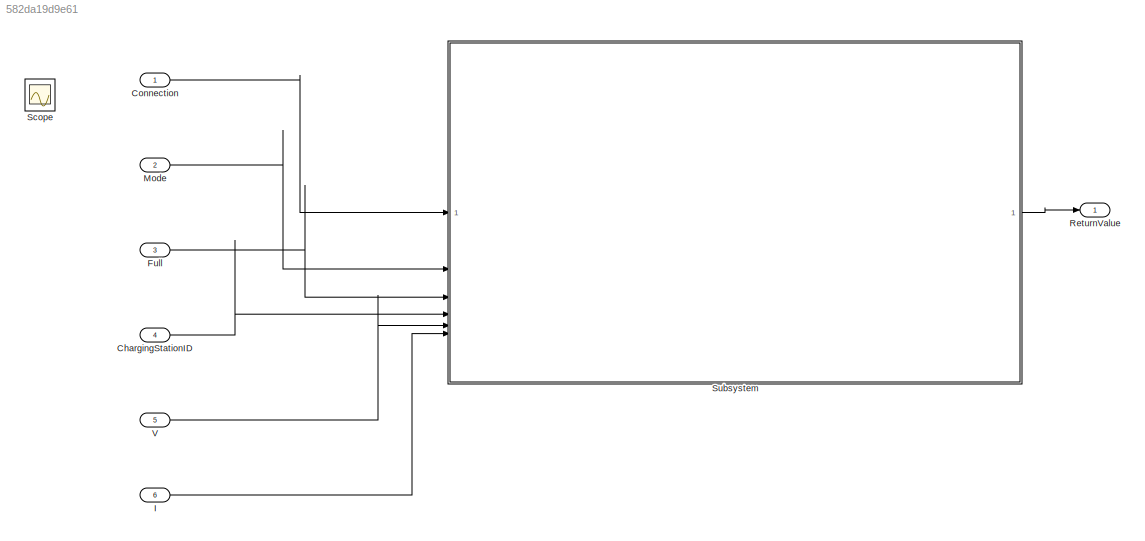
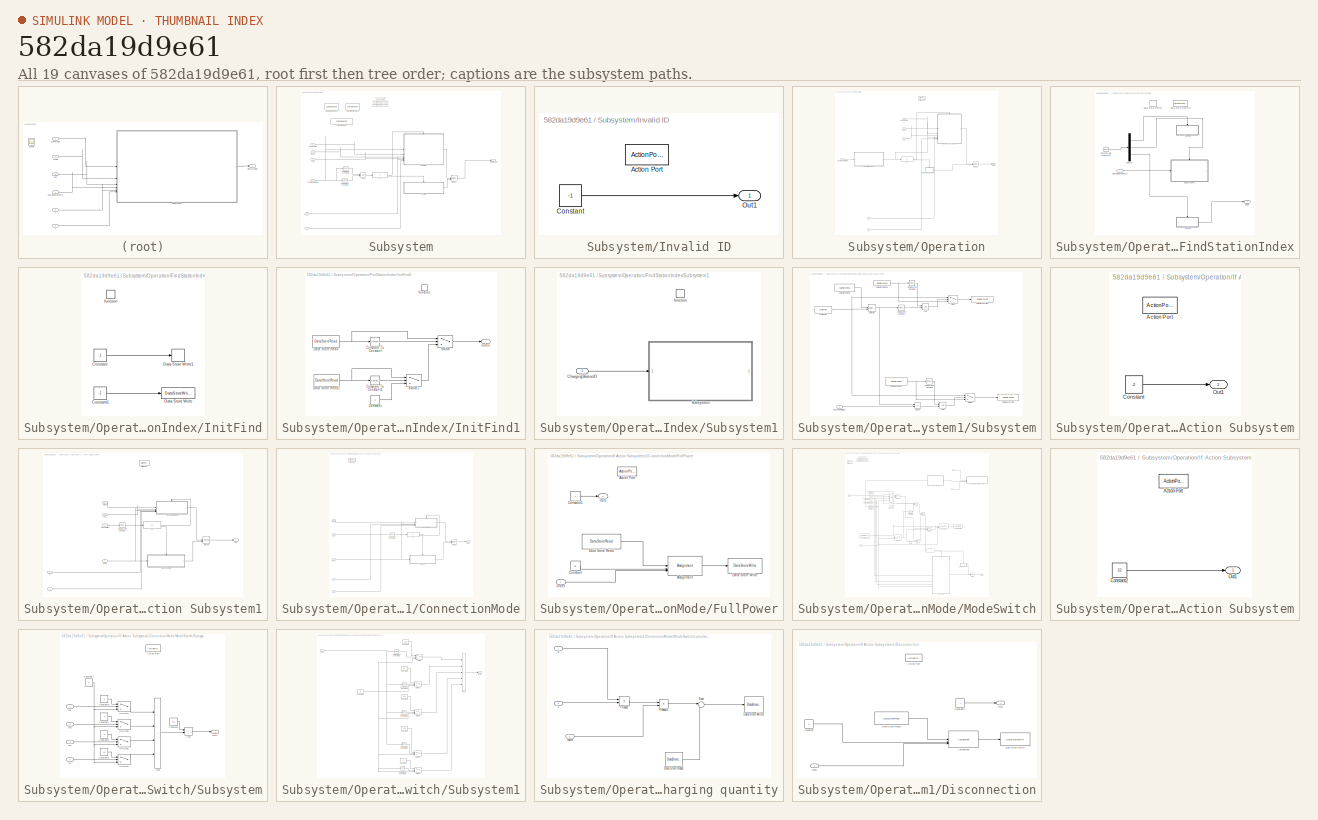
[diagram: thumbnail index - all 19 canvases of the model, root first then tree order]
MODEL slx_582da19d9e61
KIND model
CONFIG AbsTol = auto
CONFIG EnableMultiTasking = off
CONFIG FixedStep = 1
CONFIG MaxStep = auto
CONFIG MinStep = auto
CONFIG RelTol = 1e-3
CONFIG SampleTimeConstraint = Unconstrained
CONFIG SolverName = FixedStepDiscrete
CONFIG StartTime = 0.0
CONFIG StopTime = 50000000
BLOCK [Inport] ChargingStationID
  OutDataTypeStr = int16
  Port = 4
BLOCK [Inport] Connection
  OutDataTypeStr = int8
BLOCK [Inport] Full
  OutDataTypeStr = int8
  Port = 3
BLOCK [Inport] I
  OutDataTypeStr = int32
  Port = 6
BLOCK [Inport] Mode
  OutDataTypeStr = int8
  Port = 2
BLOCK [Outport] ReturnValue
BLOCK [Scope] Scope
  Floating = off
  IOType = viewer
  NumInputPorts = 1
  ScopeSpecificationString = Simulink.scopes.TimeScopeBlockCfg('CurrentConfiguration', extmgr.ConfigurationSet(extmgr.Configuration('Core','General UI',true),extmgr.Configuration('Core','Source UI',true),extmgr.Configuration('Sources','WiredSimulink',true),extmgr.Configuration('Visuals','Time Domain',true),extmgr.Configuration('Tools','Plot Navigation',true),extmgr.Configuration('Tools','Measurements',true,'Version','2022b'))...<+49ch>
BLOCK [SubSystem] Subsystem
BLOCK [Logic] Subsystem/AND
  AllPortsSameDT = off
  IconShape = distinctive
  OutDataTypeStr = boolean
BLOCK [Inport] Subsystem/ChargingStationID
  OutDataTypeStr = int16
  Port = 4
BLOCK [Reference] Subsystem/Compare To Constant1  REF=simulink/Logic and Bit
Operations/Compare
To Constant
  SourceBlock = simulink/Logic and Bit\nOperations/Compare\nTo Constant
  SourceType = Compare To Constant
BLOCK [Reference] Subsystem/Compare To Constant2  REF=simulink/Logic and Bit
Operations/Compare
To Constant
  SourceBlock = simulink/Logic and Bit\nOperations/Compare\nTo Constant
  SourceType = Compare To Constant
BLOCK [Inport] Subsystem/Connection
BLOCK [DataStoreMemory] Subsystem/Data Store Memory
  DataStoreName = Quantity
  OutDataTypeStr = int32
  ShowAdditionalParam = off
  WriteAfterWriteMsg = warning
BLOCK [DataStoreMemory] Subsystem/Data Store Memory1
  DataStoreName = ChargingPortStates
  Dimensions = Len
  OutDataTypeStr = int32
  ShowAdditionalParam = off
  WriteAfterWriteMsg = warning
BLOCK [DataStoreMemory] Subsystem/Data Store Memory2
  DataStoreName = StationID
  Dimensions = Len
  OutDataTypeStr = int32
  ShowAdditionalParam = off
  WriteAfterWriteMsg = warning
BLOCK [Inport] Subsystem/Full
  OutDataTypeStr = int8
  Port = 3
BLOCK [Inport] Subsystem/I
  Port = 6
BLOCK [If] Subsystem/If
  IfExpression = u1 ~= 0
BLOCK [SubSystem] Subsystem/Invalid ID
  TreatAsAtomicUnit = on
BLOCK [ActionPort] Subsystem/Invalid ID/Action Port
  ActionPortLabel = else
BLOCK [Constant] Subsystem/Invalid ID/Constant
  OutDataTypeStr = int32
  Value = -1
BLOCK [Outport] Subsystem/Invalid ID/Out1
BLOCK [Merge] Subsystem/Merge
BLOCK [Inport] Subsystem/Mode
  OutDataTypeStr = int8
  Port = 2
BLOCK [SubSystem] Subsystem/Operation
  TreatAsAtomicUnit = on
BLOCK [ActionPort] Subsystem/Operation/Action Port
  ActionPortLabel = if(u1 ~= 0)
BLOCK [Inport] Subsystem/Operation/ChargingStationID
  OutDataTypeStr = int16
BLOCK [Inport] Subsystem/Operation/Connection
  Port = 2
BLOCK [SubSystem] Subsystem/Operation/FindStationIndex
  TreatAsAtomicUnit = on
BLOCK [Inport] Subsystem/Operation/FindStationIndex/ChargingStationID
BLOCK [DataStoreMemory] Subsystem/Operation/FindStationIndex/Data Store Memory
  DataStoreName = FindId
  OutDataTypeStr = int16
  ShowAdditionalParam = off
  WriteAfterWriteMsg = warning
BLOCK [DataStoreMemory] Subsystem/Operation/FindStationIndex/Data Store Memory1
  DataStoreName = FindEmptyId
  OutDataTypeStr = int16
  ShowAdditionalParam = off
  WriteAfterWriteMsg = warning
BLOCK [Demux] Subsystem/Operation/FindStationIndex/Demux
  Outputs = 3
BLOCK [Reference] Subsystem/Operation/FindStationIndex/Function-Call Generator  REF=simulink/Ports &
Subsystems/Function-Call
Generator
  SourceBlock = simulink/Ports &\nSubsystems/Function-Call\nGenerator
  SourceType = Function-Call Generator
BLOCK [SubSystem] Subsystem/Operation/FindStationIndex/InitFind
BLOCK [Constant] Subsystem/Operation/FindStationIndex/InitFind/Constant
  OutDataTypeStr = int16
  Value = -1
BLOCK [Constant] Subsystem/Operation/FindStationIndex/InitFind/Constant1
  OutDataTypeStr = int16
  Value = -1
BLOCK [DataStoreWrite] Subsystem/Operation/FindStationIndex/InitFind/Data Store Write
  DataStoreName = FindEmptyId
  IndexOptions = Index vector (dialog)
  Indices = 1
  OutputSizes = 1
BLOCK [DataStoreWrite] Subsystem/Operation/FindStationIndex/InitFind/Data Store Write1
  DataStoreName = FindId
  IndexOptions = Index vector (dialog)
  Indices = 1
  OutputSizes = 1
BLOCK [TriggerPort] Subsystem/Operation/FindStationIndex/InitFind/function
  StatesWhenEnabling = held
  TriggerType = function-call
  VariantControl = Variant
BLOCK [SubSystem] Subsystem/Operation/FindStationIndex/InitFind1
BLOCK [Reference] Subsystem/Operation/FindStationIndex/InitFind1/Compare To Constant  REF=simulink/Logic and Bit
Operations/Compare
To Constant
  SourceBlock = simulink/Logic and Bit\nOperations/Compare\nTo Constant
  SourceType = Compare To Constant
BLOCK [Reference] Subsystem/Operation/FindStationIndex/InitFind1/Compare To Constant1  REF=simulink/Logic and Bit
Operations/Compare
To Constant
  SourceBlock = simulink/Logic and Bit\nOperations/Compare\nTo Constant
  SourceType = Compare To Constant
BLOCK [Constant] Subsystem/Operation/FindStationIndex/InitFind1/Constant
  OutDataTypeStr = int16
  Value = -1
BLOCK [DataStoreRead] Subsystem/Operation/FindStationIndex/InitFind1/Data Store Read
  DataStoreName = FindId
  IndexOptions = Index vector (dialog)
  Indices = 1
  OutputSizes = 1
BLOCK [DataStoreRead] Subsystem/Operation/FindStationIndex/InitFind1/Data Store Read1
  DataStoreName = FindEmptyId
  IndexOptions = Index vector (dialog)
  Indices = 1
  OutputSizes = 1
BLOCK [Switch] Subsystem/Operation/FindStationIndex/InitFind1/Switch
  Criteria = u2 ~= 0
  InputSameDT = off
  SaturateOnIntegerOverflow = off
BLOCK [Switch] Subsystem/Operation/FindStationIndex/InitFind1/Switch1
  Criteria = u2 ~= 0
  InputSameDT = off
  SaturateOnIntegerOverflow = off
BLOCK [TriggerPort] Subsystem/Operation/FindStationIndex/InitFind1/function
  StatesWhenEnabling = held
  TriggerType = function-call
  VariantControl = Variant
BLOCK [Outport] Subsystem/Operation/FindStationIndex/InitFind1/index
BLOCK [SubSystem] Subsystem/Operation/FindStationIndex/Subsystem1
BLOCK [Inport] Subsystem/Operation/FindStationIndex/Subsystem1/ChargingStationID
BLOCK [SubSystem] Subsystem/Operation/FindStationIndex/Subsystem1/Subsystem
BLOCK [Logic] Subsystem/Operation/FindStationIndex/Subsystem1/Subsystem/AND
  AllPortsSameDT = off
  IconShape = distinctive
  OutDataTypeStr = boolean
BLOCK [Logic] Subsystem/Operation/FindStationIndex/Subsystem1/Subsystem/AND1
  AllPortsSameDT = off
  IconShape = distinctive
  OutDataTypeStr = boolean
BLOCK [Inport] Subsystem/Operation/FindStationIndex/Subsystem1/Subsystem/ChargingStationID
BLOCK [Reference] Subsystem/Operation/FindStationIndex/Subsystem1/Subsystem/Compare To Constant  REF=simulink/Logic and Bit
Operations/Compare
To Constant
  SourceBlock = simulink/Logic and Bit\nOperations/Compare\nTo Constant
  SourceType = Compare To Constant
BLOCK [Reference] Subsystem/Operation/FindStationIndex/Subsystem1/Subsystem/Compare To Constant1  REF=simulink/Logic and Bit
Operations/Compare
To Constant
  SourceBlock = simulink/Logic and Bit\nOperations/Compare\nTo Constant
  SourceType = Compare To Constant
BLOCK [Reference] Subsystem/Operation/FindStationIndex/Subsystem1/Subsystem/Compare To Constant3  REF=simulink/Logic and Bit
Operations/Compare
To Constant
  SourceBlock = simulink/Logic and Bit\nOperations/Compare\nTo Constant
  SourceType = Compare To Constant
BLOCK [DataStoreRead] Subsystem/Operation/FindStationIndex/Subsystem1/Subsystem/Data Store Read
  DataStoreName = StationID
  IndexOptions = Index vector (dialog)
  Indices = 1
  OutputSizes = 1
BLOCK [DataStoreRead] Subsystem/Operation/FindStationIndex/Subsystem1/Subsystem/Data Store Read1
  DataStoreName = FindEmptyId
  IndexOptions = Index vector (dialog)
  Indices = 1
  OutputSizes = 1
BLOCK [DataStoreRead] Subsystem/Operation/FindStationIndex/Subsystem1/Subsystem/Data Store Read2
  DataStoreName = FindId
  IndexOptions = Index vector (dialog)
  Indices = 1
  OutputSizes = 1
BLOCK [DataStoreWrite] Subsystem/Operation/FindStationIndex/Subsystem1/Subsystem/Data Store Write1
  DataStoreName = FindId
  IndexOptions = Index vector (dialog)
  Indices = 1
  OutputSizes = 1
BLOCK [DataStoreWrite] Subsystem/Operation/FindStationIndex/Subsystem1/Subsystem/Data Store Write2
  DataStoreName = FindEmptyId
  IndexOptions = Index vector (dialog)
  Indices = 1
  OutputSizes = 1
BLOCK [RelationalOperator] Subsystem/Operation/FindStationIndex/Subsystem1/Subsystem/Equal
  InputSameDT = off
  Operator = ==
  OutDataTypeStr = boolean
  RndMeth = Simplest
BLOCK [ForIterator] Subsystem/Operation/FindStationIndex/Subsystem1/Subsystem/For Iterator
  IndexMode = Zero-based
  IterationLimit = Len
  IterationVariableDataType = int16
BLOCK [Selector] Subsystem/Operation/FindStationIndex/Subsystem1/Subsystem/Selector
  IndexMode = Zero-based
  IndexOptions = Index vector (port)
  Indices = [1 3]
  InputPortWidth = Len
  OutputSizes = 1
BLOCK [Switch] Subsystem/Operation/FindStationIndex/Subsystem1/Subsystem/Switch
  Criteria = u2 ~= 0
  InputSameDT = off
  SaturateOnIntegerOverflow = off
BLOCK [Switch] Subsystem/Operation/FindStationIndex/Subsystem1/Subsystem/Switch1
  Criteria = u2 ~= 0
  InputSameDT = off
  SaturateOnIntegerOverflow = off
BLOCK [TriggerPort] Subsystem/Operation/FindStationIndex/Subsystem1/function
  StatesWhenEnabling = held
  TriggerType = function-call
  VariantControl = Variant
BLOCK [Outport] Subsystem/Operation/FindStationIndex/index
BLOCK [Inport] Subsystem/Operation/Full
  Port = 4
BLOCK [Inport] Subsystem/Operation/I
  Port = 6
BLOCK [SubSystem] Subsystem/Operation/If Action Subsystem
  TreatAsAtomicUnit = on
BLOCK [ActionPort] Subsystem/Operation/If Action Subsystem/Action Port
  ActionPortLabel = else
BLOCK [Constant] Subsystem/Operation/If Action Subsystem/Constant
  OutDataTypeStr = int32
  Value = -2
BLOCK [Outport] Subsystem/Operation/If Action Subsystem/Out1
BLOCK [SubSystem] Subsystem/Operation/If Action Subsystem1
  TreatAsAtomicUnit = on
BLOCK [ActionPort] Subsystem/Operation/If Action Subsystem1/Action Port
  ActionPortLabel = if(u1 >= 0)
BLOCK [Reference] Subsystem/Operation/If Action Subsystem1/Compare To Constant  REF=simulink/Logic and Bit
Operations/Compare
To Constant
  SourceBlock = simulink/Logic and Bit\nOperations/Compare\nTo Constant
  SourceType = Compare To Constant
BLOCK [Inport] Subsystem/Operation/If Action Subsystem1/Connection
BLOCK [SubSystem] Subsystem/Operation/If Action Subsystem1/ConnectionMode
  TreatAsAtomicUnit = on
BLOCK [ActionPort] Subsystem/Operation/If Action Subsystem1/ConnectionMode/Action Port
  ActionPortLabel = if(u1 ~= 0)
BLOCK [Reference] Subsystem/Operation/If Action Subsystem1/ConnectionMode/Compare To Constant  REF=simulink/Logic and Bit
Operations/Compare
To Constant
  SourceBlock = simulink/Logic and Bit\nOperations/Compare\nTo Constant
  SourceType = Compare To Constant
BLOCK [Inport] Subsystem/Operation/If Action Subsystem1/ConnectionMode/Full
  Port = 2
BLOCK [SubSystem] Subsystem/Operation/If Action Subsystem1/ConnectionMode/FullPower
  TreatAsAtomicUnit = on
BLOCK [ActionPort] Subsystem/Operation/If Action Subsystem1/ConnectionMode/FullPower/Action Port
  ActionPortLabel = if(u1 ~= 0)
BLOCK [Assignment] Subsystem/Operation/If Action Subsystem1/ConnectionMode/FullPower/Assignment
  DiagnosticForDimensions = Warning
  IndexMode = Zero-based
  IndexOptions = Index vector (port)
  Indices = 1
  OutputSizes = 1
BLOCK [Constant] Subsystem/Operation/If Action Subsystem1/ConnectionMode/FullPower/Constant
  OutDataTypeStr = int32
  Value = 32
BLOCK [Constant] Subsystem/Operation/If Action Subsystem1/ConnectionMode/FullPower/Constant1
  OutDataTypeStr = int32
BLOCK [DataStoreRead] Subsystem/Operation/If Action Subsystem1/ConnectionMode/FullPower/Data Store Read
  DataStoreName = ChargingPortStates
  IndexOptions = Index vector (dialog)
  Indices = 1
  OutputSizes = 1
BLOCK [DataStoreWrite] Subsystem/Operation/If Action Subsystem1/ConnectionMode/FullPower/Data Store Write
  DataStoreName = ChargingPortStates
  IndexOptions = Index vector (dialog)
  Indices = 1
  OutputSizes = 1
BLOCK [Inport] Subsystem/Operation/If Action Subsystem1/ConnectionMode/FullPower/Index
BLOCK [Outport] Subsystem/Operation/If Action Subsystem1/ConnectionMode/FullPower/Out1
BLOCK [Inport] Subsystem/Operation/If Action Subsystem1/ConnectionMode/I
  Port = 5
BLOCK [If] Subsystem/Operation/If Action Subsystem1/ConnectionMode/If
  IfExpression = u1 ~= 0
BLOCK [Inport] Subsystem/Operation/If Action Subsystem1/ConnectionMode/Index
  OutDataTypeStr = int16
  Port = 3
BLOCK [Merge] Subsystem/Operation/If Action Subsystem1/ConnectionMode/Merge
BLOCK [Inport] Subsystem/Operation/If Action Subsystem1/ConnectionMode/Mode
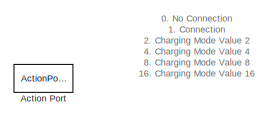
[diagram: Subsystem/Operation/If Action Subsystem1/ConnectionMode/ModeSwitch - part 1/3, top left region]
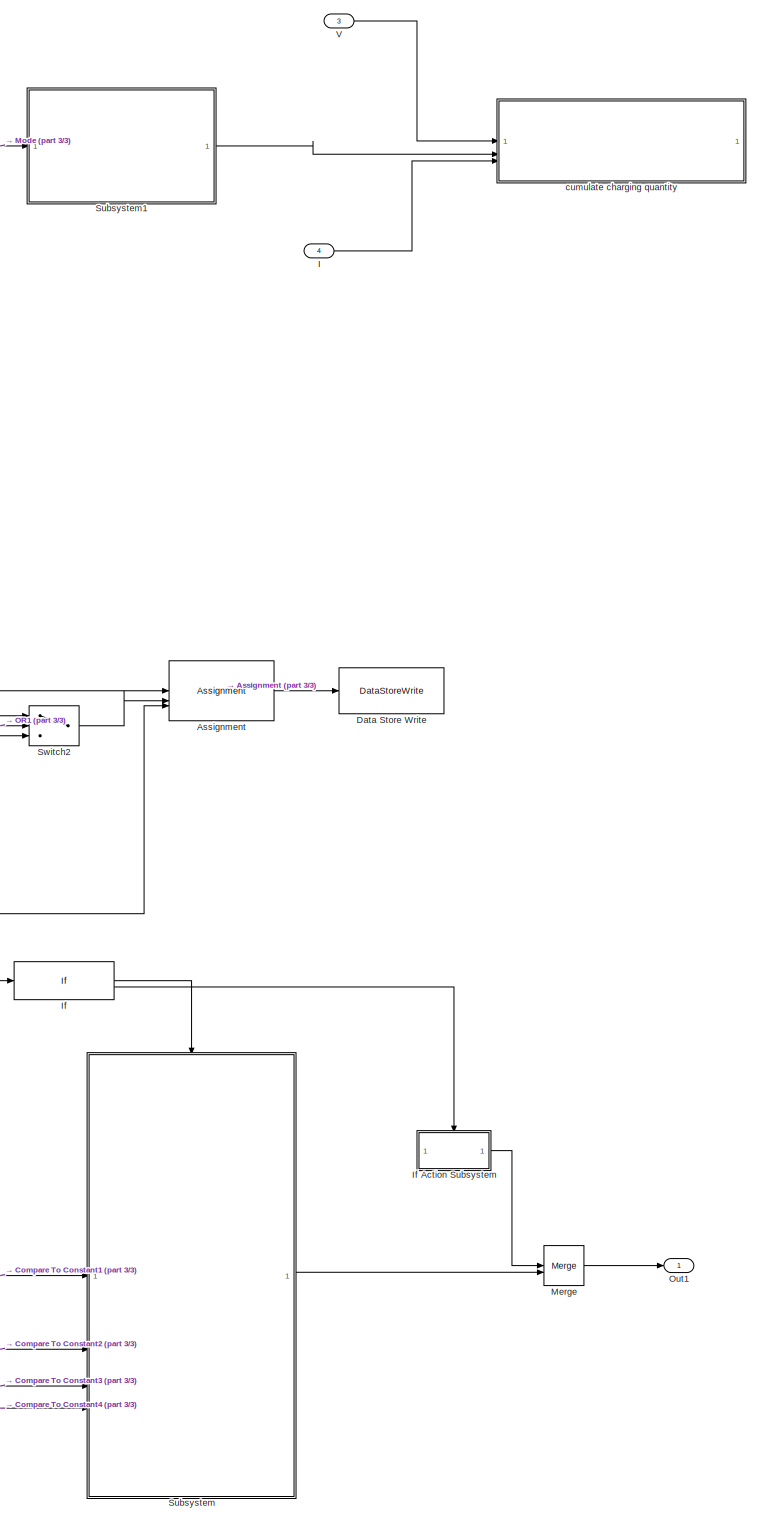
[diagram: Subsystem/Operation/If Action Subsystem1/ConnectionMode/ModeSwitch - part 2/3, right side, full height]
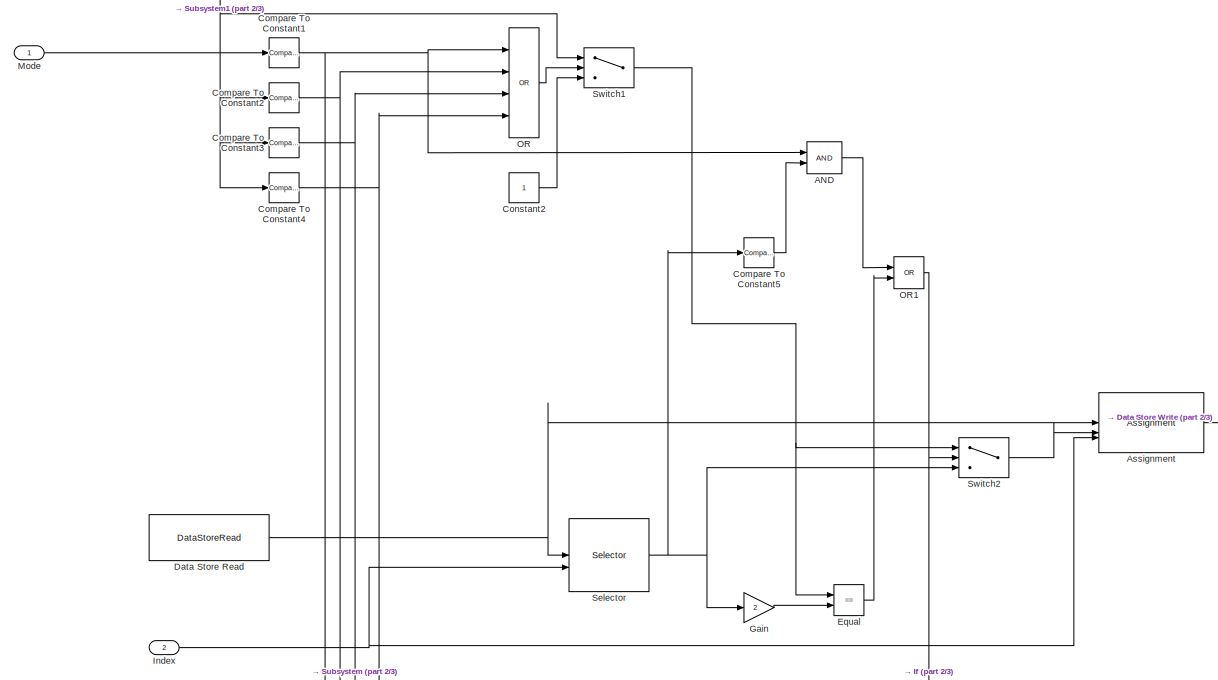
[diagram: Subsystem/Operation/If Action Subsystem1/ConnectionMode/ModeSwitch - part 3/3, central region]
BLOCK [SubSystem] Subsystem/Operation/If Action Subsystem1/ConnectionMode/ModeSwitch
  TreatAsAtomicUnit = on
BLOCK [Logic] Subsystem/Operation/If Action Subsystem1/ConnectionMode/ModeSwitch/AND
  AllPortsSameDT = off
  IconShape = distinctive
  OutDataTypeStr = boolean
BLOCK [ActionPort] Subsystem/Operation/If Action Subsystem1/ConnectionMode/ModeSwitch/Action Port
  ActionPortLabel = else
BLOCK [Assignment] Subsystem/Operation/If Action Subsystem1/ConnectionMode/ModeSwitch/Assignment
  DiagnosticForDimensions = Warning
  IndexMode = Zero-based
  IndexOptions = Index vector (port)
  Indices = 1
  OutputSizes = 1
BLOCK [Reference] Subsystem/Operation/If Action Subsystem1/ConnectionMode/ModeSwitch/Compare To Constant1  REF=simulink/Logic and Bit
Operations/Compare
To Constant
  SourceBlock = simulink/Logic and Bit\nOperations/Compare\nTo Constant
  SourceType = Compare To Constant
BLOCK [Reference] Subsystem/Operation/If Action Subsystem1/ConnectionMode/ModeSwitch/Compare To Constant2  REF=simulink/Logic and Bit
Operations/Compare
To Constant
  SourceBlock = simulink/Logic and Bit\nOperations/Compare\nTo Constant
  SourceType = Compare To Constant
BLOCK [Reference] Subsystem/Operation/If Action Subsystem1/ConnectionMode/ModeSwitch/Compare To Constant3  REF=simulink/Logic and Bit
Operations/Compare
To Constant
  SourceBlock = simulink/Logic and Bit\nOperations/Compare\nTo Constant
  SourceType = Compare To Constant
BLOCK [Reference] Subsystem/Operation/If Action Subsystem1/ConnectionMode/ModeSwitch/Compare To Constant4  REF=simulink/Logic and Bit
Operations/Compare
To Constant
  SourceBlock = simulink/Logic and Bit\nOperations/Compare\nTo Constant
  SourceType = Compare To Constant
BLOCK [Reference] Subsystem/Operation/If Action Subsystem1/ConnectionMode/ModeSwitch/Compare To Constant5  REF=simulink/Logic and Bit
Operations/Compare
To Constant
  SourceBlock = simulink/Logic and Bit\nOperations/Compare\nTo Constant
  SourceType = Compare To Constant
BLOCK [Constant] Subsystem/Operation/If Action Subsystem1/ConnectionMode/ModeSwitch/Constant2
  OutDataTypeStr = int32
BLOCK [DataStoreRead] Subsystem/Operation/If Action Subsystem1/ConnectionMode/ModeSwitch/Data Store Read
  DataStoreName = ChargingPortStates
  IndexOptions = Index vector (dialog)
  Indices = 1
  OutputSizes = 1
BLOCK [DataStoreWrite] Subsystem/Operation/If Action Subsystem1/ConnectionMode/ModeSwitch/Data Store Write
  DataStoreName = ChargingPortStates
  IndexOptions = Index vector (dialog)
  Indices = 1
  OutputSizes = 1
BLOCK [RelationalOperator] Subsystem/Operation/If Action Subsystem1/ConnectionMode/ModeSwitch/Equal
  InputSameDT = off
  Operator = ==
  OutDataTypeStr = boolean
  RndMeth = Simplest
BLOCK [Gain] Subsystem/Operation/If Action Subsystem1/ConnectionMode/ModeSwitch/Gain
  Gain = 2
  OutDataTypeStr = int32
BLOCK [Inport] Subsystem/Operation/If Action Subsystem1/ConnectionMode/ModeSwitch/I
  Port = 4
BLOCK [If] Subsystem/Operation/If Action Subsystem1/ConnectionMode/ModeSwitch/If
  IfExpression = u1 ~= 0
BLOCK [SubSystem] Subsystem/Operation/If Action Subsystem1/ConnectionMode/ModeSwitch/If Action Subsystem
  TreatAsAtomicUnit = on
BLOCK [ActionPort] Subsystem/Operation/If Action Subsystem1/ConnectionMode/ModeSwitch/If Action Subsystem/Action Port
  ActionPortLabel = else
BLOCK [Constant] Subsystem/Operation/If Action Subsystem1/ConnectionMode/ModeSwitch/If Action Subsystem/Constant2
  OutDataTypeStr = int32
  Value = 32
BLOCK [Outport] Subsystem/Operation/If Action Subsystem1/ConnectionMode/ModeSwitch/If Action Subsystem/Out1
BLOCK [Inport] Subsystem/Operation/If Action Subsystem1/ConnectionMode/ModeSwitch/Index
  OutDataTypeStr = int16
  Port = 2
BLOCK [Merge] Subsystem/Operation/If Action Subsystem1/ConnectionMode/ModeSwitch/Merge
BLOCK [Inport] Subsystem/Operation/If Action Subsystem1/ConnectionMode/ModeSwitch/Mode
BLOCK [Logic] Subsystem/Operation/If Action Subsystem1/ConnectionMode/ModeSwitch/OR
  AllPortsSameDT = off
  IconShape = distinctive
  Inputs = 4
  Operator = OR
  OutDataTypeStr = boolean
BLOCK [Logic] Subsystem/Operation/If Action Subsystem1/ConnectionMode/ModeSwitch/OR1
  AllPortsSameDT = off
  IconShape = distinctive
  Operator = OR
  OutDataTypeStr = boolean
BLOCK [Outport] Subsystem/Operation/If Action Subsystem1/ConnectionMode/ModeSwitch/Out1
BLOCK [Selector] Subsystem/Operation/If Action Subsystem1/ConnectionMode/ModeSwitch/Selector
  IndexMode = Zero-based
  IndexOptions = Index vector (port)
  Indices = [1 3]
  InputPortWidth = Len
  OutputSizes = 1
BLOCK [SubSystem] Subsystem/Operation/If Action Subsystem1/ConnectionMode/ModeSwitch/Subsystem
BLOCK [ActionPort] Subsystem/Operation/If Action Subsystem1/ConnectionMode/ModeSwitch/Subsystem/Action Port
  ActionPortLabel = if(u1 ~= 0)
BLOCK [Sum] Subsystem/Operation/If Action Subsystem1/ConnectionMode/ModeSwitch/Subsystem/Add
  IconShape = rectangular
BLOCK [Sum] Subsystem/Operation/If Action Subsystem1/ConnectionMode/ModeSwitch/Subsystem/Add1
  IconShape = rectangular
  Inputs = ++++
BLOCK [Constant] Subsystem/Operation/If Action Subsystem1/ConnectionMode/ModeSwitch/Subsystem/Constant
  OutDataTypeStr = int32
  Value = 64
BLOCK [Constant] Subsystem/Operation/If Action Subsystem1/ConnectionMode/ModeSwitch/Subsystem/Constant3
  OutDataTypeStr = int32
  Value = 2
BLOCK [Constant] Subsystem/Operation/If Action Subsystem1/ConnectionMode/ModeSwitch/Subsystem/Constant4
  OutDataTypeStr = int32
  Value = 4
BLOCK [Constant] Subsystem/Operation/If Action Subsystem1/ConnectionMode/ModeSwitch/Subsystem/Constant5
  OutDataTypeStr = int32
  Value = 8
BLOCK [Constant] Subsystem/Operation/If Action Subsystem1/ConnectionMode/ModeSwitch/Subsystem/Constant6
  OutDataTypeStr = int32
  Value = 16
BLOCK [Constant] Subsystem/Operation/If Action Subsystem1/ConnectionMode/ModeSwitch/Subsystem/Constant7
  OutDataTypeStr = int32
  Value = 0
BLOCK [Inport] Subsystem/Operation/If Action Subsystem1/ConnectionMode/ModeSwitch/Subsystem/In1
BLOCK [Inport] Subsystem/Operation/If Action Subsystem1/ConnectionMode/ModeSwitch/Subsystem/In2
  Port = 2
BLOCK [Inport] Subsystem/Operation/If Action Subsystem1/ConnectionMode/ModeSwitch/Subsystem/In3
  Port = 3
BLOCK [Inport] Subsystem/Operation/If Action Subsystem1/ConnectionMode/ModeSwitch/Subsystem/In4
  Port = 4
BLOCK [Outport] Subsystem/Operation/If Action Subsystem1/ConnectionMode/ModeSwitch/Subsystem/Out1
BLOCK [Switch] Subsystem/Operation/If Action Subsystem1/ConnectionMode/ModeSwitch/Subsystem/Switch4
  Criteria = u2 > Threshold
  InputSameDT = off
  SaturateOnIntegerOverflow = off
BLOCK [Switch] Subsystem/Operation/If Action Subsystem1/ConnectionMode/ModeSwitch/Subsystem/Switch5
  Criteria = u2 > Threshold
  InputSameDT = off
  SaturateOnIntegerOverflow = off
BLOCK [Switch] Subsystem/Operation/If Action Subsystem1/ConnectionMode/ModeSwitch/Subsystem/Switch6
  Criteria = u2 > Threshold
  InputSameDT = off
  SaturateOnIntegerOverflow = off
BLOCK [Switch] Subsystem/Operation/If Action Subsystem1/ConnectionMode/ModeSwitch/Subsystem/Switch7
  Criteria = u2 > Threshold
  InputSameDT = off
  SaturateOnIntegerOverflow = off
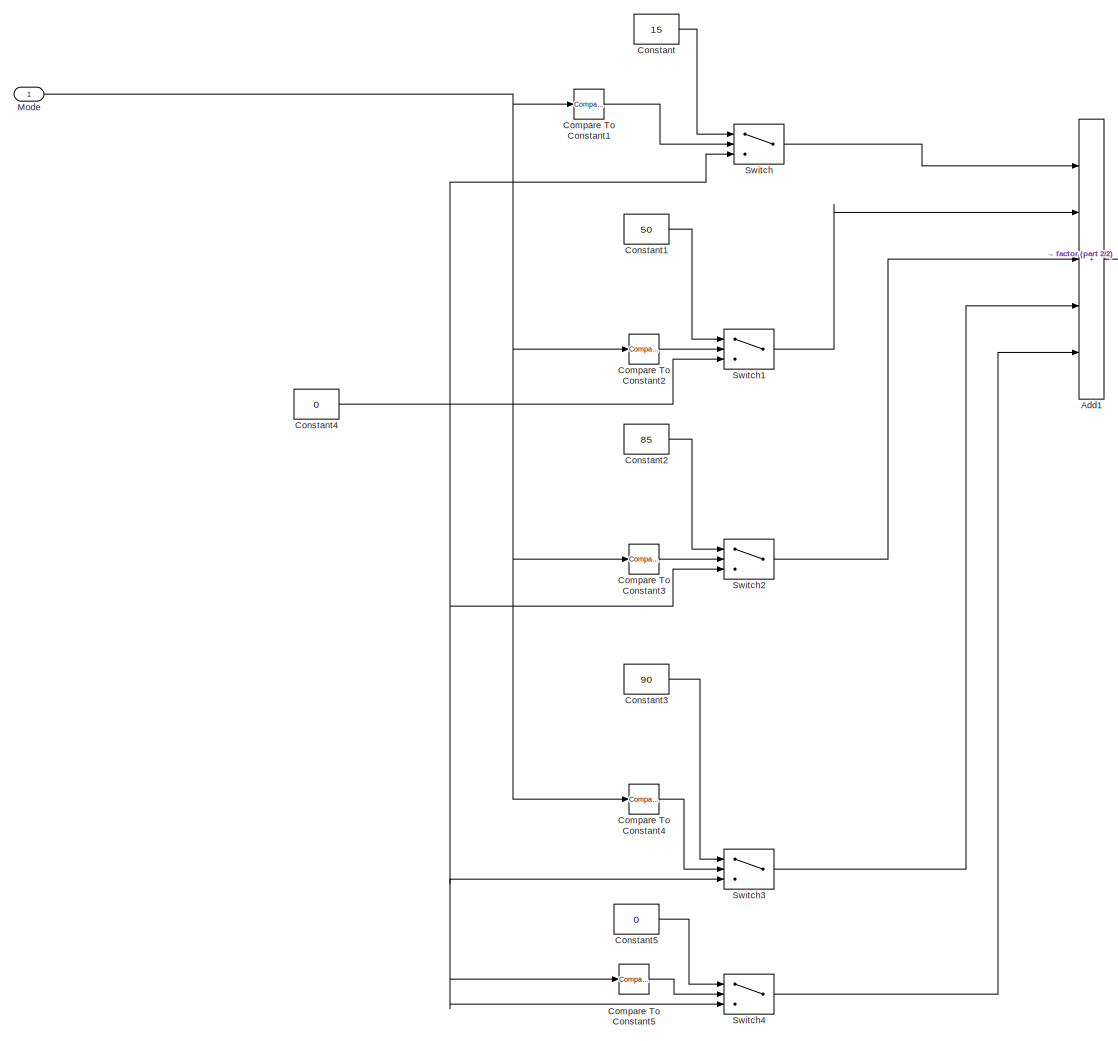
[diagram: Subsystem/Operation/If Action Subsystem1/ConnectionMode/ModeSwitch/Subsystem1 - part 1/2, most of the canvas]
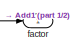
[diagram: Subsystem/Operation/If Action Subsystem1/ConnectionMode/ModeSwitch/Subsystem1 - part 2/2, top right region]
BLOCK [SubSystem] Subsystem/Operation/If Action Subsystem1/ConnectionMode/ModeSwitch/Subsystem1
BLOCK [Sum] Subsystem/Operation/If Action Subsystem1/ConnectionMode/ModeSwitch/Subsystem1/Add1
  IconShape = rectangular
  Inputs = +++++
BLOCK [Reference] Subsystem/Operation/If Action Subsystem1/ConnectionMode/ModeSwitch/Subsystem1/Compare To Constant1  REF=simulink/Logic and Bit
Operations/Compare
To Constant
  SourceBlock = simulink/Logic and Bit\nOperations/Compare\nTo Constant
  SourceType = Compare To Constant
BLOCK [Reference] Subsystem/Operation/If Action Subsystem1/ConnectionMode/ModeSwitch/Subsystem1/Compare To Constant2  REF=simulink/Logic and Bit
Operations/Compare
To Constant
  SourceBlock = simulink/Logic and Bit\nOperations/Compare\nTo Constant
  SourceType = Compare To Constant
BLOCK [Reference] Subsystem/Operation/If Action Subsystem1/ConnectionMode/ModeSwitch/Subsystem1/Compare To Constant3  REF=simulink/Logic and Bit
Operations/Compare
To Constant
  SourceBlock = simulink/Logic and Bit\nOperations/Compare\nTo Constant
  SourceType = Compare To Constant
BLOCK [Reference] Subsystem/Operation/If Action Subsystem1/ConnectionMode/ModeSwitch/Subsystem1/Compare To Constant4  REF=simulink/Logic and Bit
Operations/Compare
To Constant
  SourceBlock = simulink/Logic and Bit\nOperations/Compare\nTo Constant
  SourceType = Compare To Constant
BLOCK [Reference] Subsystem/Operation/If Action Subsystem1/ConnectionMode/ModeSwitch/Subsystem1/Compare To Constant5  REF=simulink/Logic and Bit
Operations/Compare
To Constant
  SourceBlock = simulink/Logic and Bit\nOperations/Compare\nTo Constant
  SourceType = Compare To Constant
BLOCK [Constant] Subsystem/Operation/If Action Subsystem1/ConnectionMode/ModeSwitch/Subsystem1/Constant
  OutDataTypeStr = int32
  Value = 15
BLOCK [Constant] Subsystem/Operation/If Action Subsystem1/ConnectionMode/ModeSwitch/Subsystem1/Constant1
  OutDataTypeStr = int32
  Value = 50
BLOCK [Constant] Subsystem/Operation/If Action Subsystem1/ConnectionMode/ModeSwitch/Subsystem1/Constant2
  OutDataTypeStr = int32
  Value = 85
BLOCK [Constant] Subsystem/Operation/If Action Subsystem1/ConnectionMode/ModeSwitch/Subsystem1/Constant3
  OutDataTypeStr = int32
  Value = 90
BLOCK [Constant] Subsystem/Operation/If Action Subsystem1/ConnectionMode/ModeSwitch/Subsystem1/Constant4
  OutDataTypeStr = int32
  Value = 0
BLOCK [Constant] Subsystem/Operation/If Action Subsystem1/ConnectionMode/ModeSwitch/Subsystem1/Constant5
  OutDataTypeStr = int32
  Value = 0
BLOCK [Inport] Subsystem/Operation/If Action Subsystem1/ConnectionMode/ModeSwitch/Subsystem1/Mode
BLOCK [Switch] Subsystem/Operation/If Action Subsystem1/ConnectionMode/ModeSwitch/Subsystem1/Switch
  Criteria = u2 > Threshold
  InputSameDT = off
  SaturateOnIntegerOverflow = off
BLOCK [Switch] Subsystem/Operation/If Action Subsystem1/ConnectionMode/ModeSwitch/Subsystem1/Switch1
  Criteria = u2 > Threshold
  InputSameDT = off
  SaturateOnIntegerOverflow = off
BLOCK [Switch] Subsystem/Operation/If Action Subsystem1/ConnectionMode/ModeSwitch/Subsystem1/Switch2
  Criteria = u2 > Threshold
  InputSameDT = off
  SaturateOnIntegerOverflow = off
BLOCK [Switch] Subsystem/Operation/If Action Subsystem1/ConnectionMode/ModeSwitch/Subsystem1/Switch3
  Criteria = u2 > Threshold
  InputSameDT = off
  SaturateOnIntegerOverflow = off
BLOCK [Switch] Subsystem/Operation/If Action Subsystem1/ConnectionMode/ModeSwitch/Subsystem1/Switch4
  Criteria = u2 > Threshold
  InputSameDT = off
  SaturateOnIntegerOverflow = off
BLOCK [Outport] Subsystem/Operation/If Action Subsystem1/ConnectionMode/ModeSwitch/Subsystem1/factor
BLOCK [Switch] Subsystem/Operation/If Action Subsystem1/ConnectionMode/ModeSwitch/Switch1
  Criteria = u2 > Threshold
  InputSameDT = off
  SaturateOnIntegerOverflow = off
BLOCK [Switch] Subsystem/Operation/If Action Subsystem1/ConnectionMode/ModeSwitch/Switch2
  Criteria = u2 > Threshold
  InputSameDT = off
  SaturateOnIntegerOverflow = off
BLOCK [Inport] Subsystem/Operation/If Action Subsystem1/ConnectionMode/ModeSwitch/V
  Port = 3
BLOCK [SubSystem] Subsystem/Operation/If Action Subsystem1/ConnectionMode/ModeSwitch/cumulate charging quantity
BLOCK [DataStoreRead] Subsystem/Operation/If Action Subsystem1/ConnectionMode/ModeSwitch/cumulate charging quantity/Data Store Read1
  DataStoreName = Quantity
  IndexOptions = Index vector (dialog)
  Indices = 1
  OutputSizes = 1
BLOCK [DataStoreWrite] Subsystem/Operation/If Action Subsystem1/ConnectionMode/ModeSwitch/cumulate charging quantity/Data Store Write1
  DataStoreName = Quantity
  IndexOptions = Index vector (dialog)
  Indices = 1
  OutputSizes = 1
BLOCK [Inport] Subsystem/Operation/If Action Subsystem1/ConnectionMode/ModeSwitch/cumulate charging quantity/I
  Port = 3
BLOCK [Product] Subsystem/Operation/If Action Subsystem1/ConnectionMode/ModeSwitch/cumulate charging quantity/Product
  OutDataTypeStr = int32
BLOCK [Product] Subsystem/Operation/If Action Subsystem1/ConnectionMode/ModeSwitch/cumulate charging quantity/Product1
  OutDataTypeStr = int32
BLOCK [Sum] Subsystem/Operation/If Action Subsystem1/ConnectionMode/ModeSwitch/cumulate charging quantity/Sum
  Inputs = |++
BLOCK [Inport] Subsystem/Operation/If Action Subsystem1/ConnectionMode/ModeSwitch/cumulate charging quantity/V
BLOCK [Inport] Subsystem/Operation/If Action Subsystem1/ConnectionMode/ModeSwitch/cumulate charging quantity/factor
  Port = 2
BLOCK [Outport] Subsystem/Operation/If Action Subsystem1/ConnectionMode/Out1
BLOCK [Inport] Subsystem/Operation/If Action Subsystem1/ConnectionMode/V
  Port = 4
BLOCK [SubSystem] Subsystem/Operation/If Action Subsystem1/Disconnection
  TreatAsAtomicUnit = on
BLOCK [ActionPort] Subsystem/Operation/If Action Subsystem1/Disconnection/Action Port
  ActionPortLabel = else
BLOCK [Assignment] Subsystem/Operation/If Action Subsystem1/Disconnection/Assignment
  DiagnosticForDimensions = Warning
  IndexMode = Zero-based
  IndexOptions = Index vector (port)
  Indices = 1
  OutputSizes = 1
BLOCK [Constant] Subsystem/Operation/If Action Subsystem1/Disconnection/Constant
  OutDataTypeStr = int32
  Value = 0
BLOCK [Constant] Subsystem/Operation/If Action Subsystem1/Disconnection/Constant1
  OutDataTypeStr = int32
BLOCK [DataStoreRead] Subsystem/Operation/If Action Subsystem1/Disconnection/Data Store Read
  DataStoreName = ChargingPortStates
  IndexOptions = Index vector (dialog)
  Indices = 1
  OutputSizes = 1
BLOCK [DataStoreWrite] Subsystem/Operation/If Action Subsystem1/Disconnection/Data Store Write
  DataStoreName = ChargingPortStates
  IndexOptions = Index vector (dialog)
  Indices = 1
  OutputSizes = 1
BLOCK [Inport] Subsystem/Operation/If Action Subsystem1/Disconnection/Index
BLOCK [Outport] Subsystem/Operation/If Action Subsystem1/Disconnection/Out1
BLOCK [Inport] Subsystem/Operation/If Action Subsystem1/Full
  Port = 3
BLOCK [Inport] Subsystem/Operation/If Action Subsystem1/I
  Port = 6
BLOCK [If] Subsystem/Operation/If Action Subsystem1/If
  IfExpression = u1 ~= 0
BLOCK [Inport] Subsystem/Operation/If Action Subsystem1/Index
  OutDataTypeStr = int16
  Port = 4
BLOCK [Merge] Subsystem/Operation/If Action Subsystem1/Merge
BLOCK [Inport] Subsystem/Operation/If Action Subsystem1/Mode
  Port = 2
BLOCK [Outport] Subsystem/Operation/If Action Subsystem1/Out1
BLOCK [Inport] Subsystem/Operation/If Action Subsystem1/V
  Port = 5
BLOCK [If] Subsystem/Operation/If1
  IfExpression = u1 >= 0
BLOCK [Merge] Subsystem/Operation/Merge
BLOCK [Inport] Subsystem/Operation/Mode
  Port = 3
BLOCK [Outport] Subsystem/Operation/Out1
BLOCK [Inport] Subsystem/Operation/V
  Port = 5
BLOCK [Outport] Subsystem/ReturnValue
BLOCK [Inport] Subsystem/V
  Port = 5
BLOCK [Inport] V
  OutDataTypeStr = int32
  Port = 5
ANNOTATION Subsystem: 0. No Connection 1. Connection 2. Charging Mode Value 2 4. Charging Mode Value 4 8. Charging Mode Value 8 16. Charging Mode Value 16 32. Full
ANNOTATION Subsystem/Operation/If Action Subsystem1/ConnectionMode/ModeSwitch: 0. No Connection 1. Connection 2. Charging Mode Value 2 4. Charging Mode Value 4 8. Charging Mode Value 8 16. Charging Mode Value 16 32. Full
LINE ChargingStationID:1 -> Subsystem:4
LINE Connection:1 -> Subsystem:1
LINE Full:1 -> Subsystem:3
LINE I:1 -> Subsystem:6
LINE Mode:1 -> Subsystem:2
LINE Subsystem/AND:1 -> Subsystem/If:1
NET Subsystem/ChargingStationID:1 -> Subsystem/Compare To Constant1:1, Subsystem/Compare To Constant2:1, Subsystem/Operation:1
LINE Subsystem/Compare To Constant1:1 -> Subsystem/AND:1
LINE Subsystem/Compare To Constant2:1 -> Subsystem/AND:2
LINE Subsystem/Connection:1 -> Subsystem/Operation:2
LINE Subsystem/Full:1 -> Subsystem/Operation:4
LINE Subsystem/I:1 -> Subsystem/Operation:6
LINE Subsystem/If:1 -> Subsystem/Operation:ifaction
LINE Subsystem/If:2 -> Subsystem/Invalid ID:ifaction
LINE Subsystem/Invalid ID/Constant:1 -> Subsystem/Invalid ID/Out1:1
LINE Subsystem/Invalid ID:1 -> Subsystem/Merge:2
LINE Subsystem/Merge:1 -> Subsystem/ReturnValue:1
LINE Subsystem/Mode:1 -> Subsystem/Operation:3
LINE Subsystem/Operation/ChargingStationID:1 -> Subsystem/Operation/FindStationIndex:1
LINE Subsystem/Operation/Connection:1 -> Subsystem/Operation/If Action Subsystem1:1
LINE Subsystem/Operation/FindStationIndex/ChargingStationID:1 -> Subsystem/Operation/FindStationIndex/Subsystem1:1
LINE Subsystem/Operation/FindStationIndex/Demux:1 -> Subsystem/Operation/FindStationIndex/InitFind:trigger
LINE Subsystem/Operation/FindStationIndex/Demux:2 -> Subsystem/Operation/FindStationIndex/Subsystem1:trigger
LINE Subsystem/Operation/FindStationIndex/Demux:3 -> Subsystem/Operation/FindStationIndex/InitFind1:trigger
LINE Subsystem/Operation/FindStationIndex/Function-Call Generator:1 -> Subsystem/Operation/FindStationIndex/Demux:1
LINE Subsystem/Operation/FindStationIndex/InitFind/Constant1:1 -> Subsystem/Operation/FindStationIndex/InitFind/Data Store Write:1
LINE Subsystem/Operation/FindStationIndex/InitFind/Constant:1 -> Subsystem/Operation/FindStationIndex/InitFind/Data Store Write1:1
LINE Subsystem/Operation/FindStationIndex/InitFind1/Compare To Constant1:1 -> Subsystem/Operation/FindStationIndex/InitFind1/Switch1:2
LINE Subsystem/Operation/FindStationIndex/InitFind1/Compare To Constant:1 -> Subsystem/Operation/FindStationIndex/InitFind1/Switch:2
LINE Subsystem/Operation/FindStationIndex/InitFind1/Constant:1 -> Subsystem/Operation/FindStationIndex/InitFind1/Switch1:3
NET Subsystem/Operation/FindStationIndex/InitFind1/Data Store Read1:1 -> Subsystem/Operation/FindStationIndex/InitFind1/Compare To Constant1:1, Subsystem/Operation/FindStationIndex/InitFind1/Switch1:1
NET Subsystem/Operation/FindStationIndex/InitFind1/Data Store Read:1 -> Subsystem/Operation/FindStationIndex/InitFind1/Compare To Constant:1, Subsystem/Operation/FindStationIndex/InitFind1/Switch:1
LINE Subsystem/Operation/FindStationIndex/InitFind1/Switch1:1 -> Subsystem/Operation/FindStationIndex/InitFind1/Switch:3
LINE Subsystem/Operation/FindStationIndex/InitFind1/Switch:1 -> Subsystem/Operation/FindStationIndex/InitFind1/index:1
LINE Subsystem/Operation/FindStationIndex/InitFind1:1 -> Subsystem/Operation/FindStationIndex/index:1
LINE Subsystem/Operation/FindStationIndex/Subsystem1/ChargingStationID:1 -> Subsystem/Operation/FindStationIndex/Subsystem1/Subsystem:1
LINE Subsystem/Operation/FindStationIndex/Subsystem1/Subsystem/AND1:1 -> Subsystem/Operation/FindStationIndex/Subsystem1/Subsystem/Switch1:2
LINE Subsystem/Operation/FindStationIndex/Subsystem1/Subsystem/AND:1 -> Subsystem/Operation/FindStationIndex/Subsystem1/Subsystem/Switch:2
LINE Subsystem/Operation/FindStationIndex/Subsystem1/Subsystem/ChargingStationID:1 -> Subsystem/Operation/FindStationIndex/Subsystem1/Subsystem/Equal:2
LINE Subsystem/Operation/FindStationIndex/Subsystem1/Subsystem/Compare To Constant1:1 -> Subsystem/Operation/FindStationIndex/Subsystem1/Subsystem/AND:1
LINE Subsystem/Operation/FindStationIndex/Subsystem1/Subsystem/Compare To Constant3:1 -> Subsystem/Operation/FindStationIndex/Subsystem1/Subsystem/AND1:1
LINE Subsystem/Operation/FindStationIndex/Subsystem1/Subsystem/Compare To Constant:1 -> Subsystem/Operation/FindStationIndex/Subsystem1/Subsystem/AND:2
NET Subsystem/Operation/FindStationIndex/Subsystem1/Subsystem/Data Store Read1:1 -> Subsystem/Operation/FindStationIndex/Subsystem1/Subsystem/Compare To Constant1:1, Subsystem/Operation/FindStationIndex/Subsystem1/Subsystem/Switch:3
NET Subsystem/Operation/FindStationIndex/Subsystem1/Subsystem/Data Store Read2:1 -> Subsystem/Operation/FindStationIndex/Subsystem1/Subsystem/Compare To Constant3:1, Subsystem/Operation/FindStationIndex/Subsystem1/Subsystem/Switch1:3
LINE Subsystem/Operation/FindStationIndex/Subsystem1/Subsystem/Data Store Read:1 -> Subsystem/Operation/FindStationIndex/Subsystem1/Subsystem/Selector:1
LINE Subsystem/Operation/FindStationIndex/Subsystem1/Subsystem/Equal:1 -> Subsystem/Operation/FindStationIndex/Subsystem1/Subsystem/AND1:2
NET Subsystem/Operation/FindStationIndex/Subsystem1/Subsystem/For Iterator:1 -> Subsystem/Operation/FindStationIndex/Subsystem1/Subsystem/Selector:2, Subsystem/Operation/FindStationIndex/Subsystem1/Subsystem/Switch1:1, Subsystem/Operation/FindStationIndex/Subsystem1/Subsystem/Switch:1
NET Subsystem/Operation/FindStationIndex/Subsystem1/Subsystem/Selector:1 -> Subsystem/Operation/FindStationIndex/Subsystem1/Subsystem/Compare To Constant:1, Subsystem/Operation/FindStationIndex/Subsystem1/Subsystem/Equal:1
LINE Subsystem/Operation/FindStationIndex/Subsystem1/Subsystem/Switch1:1 -> Subsystem/Operation/FindStationIndex/Subsystem1/Subsystem/Data Store Write1:1
LINE Subsystem/Operation/FindStationIndex/Subsystem1/Subsystem/Switch:1 -> Subsystem/Operation/FindStationIndex/Subsystem1/Subsystem/Data Store Write2:1
NET Subsystem/Operation/FindStationIndex:1 -> Subsystem/Operation/If Action Subsystem1:4, Subsystem/Operation/If1:1
LINE Subsystem/Operation/Full:1 -> Subsystem/Operation/If Action Subsystem1:3
LINE Subsystem/Operation/I:1 -> Subsystem/Operation/If Action Subsystem1:6
LINE Subsystem/Operation/If Action Subsystem/Constant:1 -> Subsystem/Operation/If Action Subsystem/Out1:1
LINE Subsystem/Operation/If Action Subsystem1/Compare To Constant:1 -> Subsystem/Operation/If Action Subsystem1/If:1
LINE Subsystem/Operation/If Action Subsystem1/Connection:1 -> Subsystem/Operation/If Action Subsystem1/Compare To Constant:1
LINE Subsystem/Operation/If Action Subsystem1/ConnectionMode/Compare To Constant:1 -> Subsystem/Operation/If Action Subsystem1/ConnectionMode/If:1
LINE Subsystem/Operation/If Action Subsystem1/ConnectionMode/Full:1 -> Subsystem/Operation/If Action Subsystem1/ConnectionMode/Compare To Constant:1
LINE Subsystem/Operation/If Action Subsystem1/ConnectionMode/FullPower/Assignment:1 -> Subsystem/Operation/If Action Subsystem1/ConnectionMode/FullPower/Data Store Write:1
LINE Subsystem/Operation/If Action Subsystem1/ConnectionMode/FullPower/Constant1:1 -> Subsystem/Operation/If Action Subsystem1/ConnectionMode/FullPower/Out1:1
LINE Subsystem/Operation/If Action Subsystem1/ConnectionMode/FullPower/Constant:1 -> Subsystem/Operation/If Action Subsystem1/ConnectionMode/FullPower/Assignment:2
LINE Subsystem/Operation/If Action Subsystem1/ConnectionMode/FullPower/Data Store Read:1 -> Subsystem/Operation/If Action Subsystem1/ConnectionMode/FullPower/Assignment:1
LINE Subsystem/Operation/If Action Subsystem1/ConnectionMode/FullPower/Index:1 -> Subsystem/Operation/If Action Subsystem1/ConnectionMode/FullPower/Assignment:3
LINE Subsystem/Operation/If Action Subsystem1/ConnectionMode/FullPower:1 -> Subsystem/Operation/If Action Subsystem1/ConnectionMode/Merge:2
LINE Subsystem/Operation/If Action Subsystem1/ConnectionMode/I:1 -> Subsystem/Operation/If Action Subsystem1/ConnectionMode/ModeSwitch:4
LINE Subsystem/Operation/If Action Subsystem1/ConnectionMode/If:1 -> Subsystem/Operation/If Action Subsystem1/ConnectionMode/FullPower:ifaction
LINE Subsystem/Operation/If Action Subsystem1/ConnectionMode/If:2 -> Subsystem/Operation/If Action Subsystem1/ConnectionMode/ModeSwitch:ifaction
NET Subsystem/Operation/If Action Subsystem1/ConnectionMode/Index:1 -> Subsystem/Operation/If Action Subsystem1/ConnectionMode/FullPower:1, Subsystem/Operation/If Action Subsystem1/ConnectionMode/ModeSwitch:2
LINE Subsystem/Operation/If Action Subsystem1/ConnectionMode/Merge:1 -> Subsystem/Operation/If Action Subsystem1/ConnectionMode/Out1:1
LINE Subsystem/Operation/If Action Subsystem1/ConnectionMode/Mode:1 -> Subsystem/Operation/If Action Subsystem1/ConnectionMode/ModeSwitch:1
LINE Subsystem/Operation/If Action Subsystem1/ConnectionMode/ModeSwitch/AND:1 -> Subsystem/Operation/If Action Subsystem1/ConnectionMode/ModeSwitch/OR1:1
LINE Subsystem/Operation/If Action Subsystem1/ConnectionMode/ModeSwitch/Assignment:1 -> Subsystem/Operation/If Action Subsystem1/ConnectionMode/ModeSwitch/Data Store Write:1
NET Subsystem/Operation/If Action Subsystem1/ConnectionMode/ModeSwitch/Compare To Constant1:1 -> Subsystem/Operation/If Action Subsystem1/ConnectionMode/ModeSwitch/AND:1, Subsystem/Operation/If Action Subsystem1/ConnectionMode/ModeSwitch/OR:1, Subsystem/Operation/If Action Subsystem1/ConnectionMode/ModeSwitch/Subsystem:1
NET Subsystem/Operation/If Action Subsystem1/ConnectionMode/ModeSwitch/Compare To Constant2:1 -> Subsystem/Operation/If Action Subsystem1/ConnectionMode/ModeSwitch/OR:2, Subsystem/Operation/If Action Subsystem1/ConnectionMode/ModeSwitch/Subsystem:2
NET Subsystem/Operation/If Action Subsystem1/ConnectionMode/ModeSwitch/Compare To Constant3:1 -> Subsystem/Operation/If Action Subsystem1/ConnectionMode/ModeSwitch/OR:3, Subsystem/Operation/If Action Subsystem1/ConnectionMode/ModeSwitch/Subsystem:3
NET Subsystem/Operation/If Action Subsystem1/ConnectionMode/ModeSwitch/Compare To Constant4:1 -> Subsystem/Operation/If Action Subsystem1/ConnectionMode/ModeSwitch/OR:4, Subsystem/Operation/If Action Subsystem1/ConnectionMode/ModeSwitch/Subsystem:4
LINE Subsystem/Operation/If Action Subsystem1/ConnectionMode/ModeSwitch/Compare To Constant5:1 -> Subsystem/Operation/If Action Subsystem1/ConnectionMode/ModeSwitch/AND:2
LINE Subsystem/Operation/If Action Subsystem1/ConnectionMode/ModeSwitch/Constant2:1 -> Subsystem/Operation/If Action Subsystem1/ConnectionMode/ModeSwitch/Switch1:3
NET Subsystem/Operation/If Action Subsystem1/ConnectionMode/ModeSwitch/Data Store Read:1 -> Subsystem/Operation/If Action Subsystem1/ConnectionMode/ModeSwitch/Assignment:1, Subsystem/Operation/If Action Subsystem1/ConnectionMode/ModeSwitch/Selector:1
LINE Subsystem/Operation/If Action Subsystem1/ConnectionMode/ModeSwitch/Equal:1 -> Subsystem/Operation/If Action Subsystem1/ConnectionMode/ModeSwitch/OR1:2
LINE Subsystem/Operation/If Action Subsystem1/ConnectionMode/ModeSwitch/Gain:1 -> Subsystem/Operation/If Action Subsystem1/ConnectionMode/ModeSwitch/Equal:2
LINE Subsystem/Operation/If Action Subsystem1/ConnectionMode/ModeSwitch/I:1 -> Subsystem/Operation/If Action Subsystem1/ConnectionMode/ModeSwitch/cumulate charging quantity:3
LINE Subsystem/Operation/If Action Subsystem1/ConnectionMode/ModeSwitch/If Action Subsystem/Constant2:1 -> Subsystem/Operation/If Action Subsystem1/ConnectionMode/ModeSwitch/If Action Subsystem/Out1:1
LINE Subsystem/Operation/If Action Subsystem1/ConnectionMode/ModeSwitch/If Action Subsystem:1 -> Subsystem/Operation/If Action Subsystem1/ConnectionMode/ModeSwitch/Merge:1
LINE Subsystem/Operation/If Action Subsystem1/ConnectionMode/ModeSwitch/If:1 -> Subsystem/Operation/If Action Subsystem1/ConnectionMode/ModeSwitch/Subsystem:ifaction
LINE Subsystem/Operation/If Action Subsystem1/ConnectionMode/ModeSwitch/If:2 -> Subsystem/Operation/If Action Subsystem1/ConnectionMode/ModeSwitch/If Action Subsystem:ifaction
NET Subsystem/Operation/If Action Subsystem1/ConnectionMode/ModeSwitch/Index:1 -> Subsystem/Operation/If Action Subsystem1/ConnectionMode/ModeSwitch/Assignment:3, Subsystem/Operation/If Action Subsystem1/ConnectionMode/ModeSwitch/Selector:2
LINE Subsystem/Operation/If Action Subsystem1/ConnectionMode/ModeSwitch/Merge:1 -> Subsystem/Operation/If Action Subsystem1/ConnectionMode/ModeSwitch/Out1:1
NET Subsystem/Operation/If Action Subsystem1/ConnectionMode/ModeSwitch/Mode:1 -> Subsystem/Operation/If Action Subsystem1/ConnectionMode/ModeSwitch/Compare To Constant1:1, Subsystem/Operation/If Action Subsystem1/ConnectionMode/ModeSwitch/Compare To Constant2:1, Subsystem/Operation/If Action Subsystem1/ConnectionMode/ModeSwitch/Compare To Constant3:1, Subsystem/Operation/If Action Subsystem1/ConnectionMode/ModeSwitch/Compare To Constant4:1, Subsystem/Operation/If Action Subsystem1/ConnectionMode/ModeSwitch/Subsystem1:1, Subsystem/Operation/If Action Subsystem1/ConnectionMode/ModeSwitch/Switch1:1
NET Subsystem/Operation/If Action Subsystem1/ConnectionMode/ModeSwitch/OR1:1 -> Subsystem/Operation/If Action Subsystem1/ConnectionMode/ModeSwitch/If:1, Subsystem/Operation/If Action Subsystem1/ConnectionMode/ModeSwitch/Switch2:2
LINE Subsystem/Operation/If Action Subsystem1/ConnectionMode/ModeSwitch/OR:1 -> Subsystem/Operation/If Action Subsystem1/ConnectionMode/ModeSwitch/Switch1:2
NET Subsystem/Operation/If Action Subsystem1/ConnectionMode/ModeSwitch/Selector:1 -> Subsystem/Operation/If Action Subsystem1/ConnectionMode/ModeSwitch/Compare To Constant5:1, Subsystem/Operation/If Action Subsystem1/ConnectionMode/ModeSwitch/Gain:1, Subsystem/Operation/If Action Subsystem1/ConnectionMode/ModeSwitch/Switch2:3
LINE Subsystem/Operation/If Action Subsystem1/ConnectionMode/ModeSwitch/Subsystem/Add1:1 -> Subsystem/Operation/If Action Subsystem1/ConnectionMode/ModeSwitch/Subsystem/Add:2
LINE Subsystem/Operation/If Action Subsystem1/ConnectionMode/ModeSwitch/Subsystem/Add:1 -> Subsystem/Operation/If Action Subsystem1/ConnectionMode/ModeSwitch/Subsystem/Out1:1
LINE Subsystem/Operation/If Action Subsystem1/ConnectionMode/ModeSwitch/Subsystem/Constant3:1 -> Subsystem/Operation/If Action Subsystem1/ConnectionMode/ModeSwitch/Subsystem/Switch4:1
LINE Subsystem/Operation/If Action Subsystem1/ConnectionMode/ModeSwitch/Subsystem/Constant4:1 -> Subsystem/Operation/If Action Subsystem1/ConnectionMode/ModeSwitch/Subsystem/Switch5:1
LINE Subsystem/Operation/If Action Subsystem1/ConnectionMode/ModeSwitch/Subsystem/Constant5:1 -> Subsystem/Operation/If Action Subsystem1/ConnectionMode/ModeSwitch/Subsystem/Switch6:1
LINE Subsystem/Operation/If Action Subsystem1/ConnectionMode/ModeSwitch/Subsystem/Constant6:1 -> Subsystem/Operation/If Action Subsystem1/ConnectionMode/ModeSwitch/Subsystem/Switch7:1
NET Subsystem/Operation/If Action Subsystem1/ConnectionMode/ModeSwitch/Subsystem/Constant7:1 -> Subsystem/Operation/If Action Subsystem1/ConnectionMode/ModeSwitch/Subsystem/Switch4:3, Subsystem/Operation/If Action Subsystem1/ConnectionMode/ModeSwitch/Subsystem/Switch5:3, Subsystem/Operation/If Action Subsystem1/ConnectionMode/ModeSwitch/Subsystem/Switch6:3, Subsystem/Operation/If Action Subsystem1/ConnectionMode/ModeSwitch/Subsystem/Switch7:3
LINE Subsystem/Operation/If Action Subsystem1/ConnectionMode/ModeSwitch/Subsystem/Constant:1 -> Subsystem/Operation/If Action Subsystem1/ConnectionMode/ModeSwitch/Subsystem/Add:1
LINE Subsystem/Operation/If Action Subsystem1/ConnectionMode/ModeSwitch/Subsystem/In1:1 -> Subsystem/Operation/If Action Subsystem1/ConnectionMode/ModeSwitch/Subsystem/Switch4:2
LINE Subsystem/Operation/If Action Subsystem1/ConnectionMode/ModeSwitch/Subsystem/In2:1 -> Subsystem/Operation/If Action Subsystem1/ConnectionMode/ModeSwitch/Subsystem/Switch5:2
LINE Subsystem/Operation/If Action Subsystem1/ConnectionMode/ModeSwitch/Subsystem/In3:1 -> Subsystem/Operation/If Action Subsystem1/ConnectionMode/ModeSwitch/Subsystem/Switch6:2
LINE Subsystem/Operation/If Action Subsystem1/ConnectionMode/ModeSwitch/Subsystem/In4:1 -> Subsystem/Operation/If Action Subsystem1/ConnectionMode/ModeSwitch/Subsystem/Switch7:2
LINE Subsystem/Operation/If Action Subsystem1/ConnectionMode/ModeSwitch/Subsystem/Switch4:1 -> Subsystem/Operation/If Action Subsystem1/ConnectionMode/ModeSwitch/Subsystem/Add1:1
LINE Subsystem/Operation/If Action Subsystem1/ConnectionMode/ModeSwitch/Subsystem/Switch5:1 -> Subsystem/Operation/If Action Subsystem1/ConnectionMode/ModeSwitch/Subsystem/Add1:2
LINE Subsystem/Operation/If Action Subsystem1/ConnectionMode/ModeSwitch/Subsystem/Switch6:1 -> Subsystem/Operation/If Action Subsystem1/ConnectionMode/ModeSwitch/Subsystem/Add1:3
LINE Subsystem/Operation/If Action Subsystem1/ConnectionMode/ModeSwitch/Subsystem/Switch7:1 -> Subsystem/Operation/If Action Subsystem1/ConnectionMode/ModeSwitch/Subsystem/Add1:4
LINE Subsystem/Operation/If Action Subsystem1/ConnectionMode/ModeSwitch/Subsystem1/Add1:1 -> Subsystem/Operation/If Action Subsystem1/ConnectionMode/ModeSwitch/Subsystem1/factor:1
LINE Subsystem/Operation/If Action Subsystem1/ConnectionMode/ModeSwitch/Subsystem1/Compare To Constant1:1 -> Subsystem/Operation/If Action Subsystem1/ConnectionMode/ModeSwitch/Subsystem1/Switch:2
LINE Subsystem/Operation/If Action Subsystem1/ConnectionMode/ModeSwitch/Subsystem1/Compare To Constant2:1 -> Subsystem/Operation/If Action Subsystem1/ConnectionMode/ModeSwitch/Subsystem1/Switch1:2
LINE Subsystem/Operation/If Action Subsystem1/ConnectionMode/ModeSwitch/Subsystem1/Compare To Constant3:1 -> Subsystem/Operation/If Action Subsystem1/ConnectionMode/ModeSwitch/Subsystem1/Switch2:2
LINE Subsystem/Operation/If Action Subsystem1/ConnectionMode/ModeSwitch/Subsystem1/Compare To Constant4:1 -> Subsystem/Operation/If Action Subsystem1/ConnectionMode/ModeSwitch/Subsystem1/Switch3:2
LINE Subsystem/Operation/If Action Subsystem1/ConnectionMode/ModeSwitch/Subsystem1/Compare To Constant5:1 -> Subsystem/Operation/If Action Subsystem1/ConnectionMode/ModeSwitch/Subsystem1/Switch4:2
LINE Subsystem/Operation/If Action Subsystem1/ConnectionMode/ModeSwitch/Subsystem1/Constant1:1 -> Subsystem/Operation/If Action Subsystem1/ConnectionMode/ModeSwitch/Subsystem1/Switch1:1
LINE Subsystem/Operation/If Action Subsystem1/ConnectionMode/ModeSwitch/Subsystem1/Constant2:1 -> Subsystem/Operation/If Action Subsystem1/ConnectionMode/ModeSwitch/Subsystem1/Switch2:1
LINE Subsystem/Operation/If Action Subsystem1/ConnectionMode/ModeSwitch/Subsystem1/Constant3:1 -> Subsystem/Operation/If Action Subsystem1/ConnectionMode/ModeSwitch/Subsystem1/Switch3:1
NET Subsystem/Operation/If Action Subsystem1/ConnectionMode/ModeSwitch/Subsystem1/Constant4:1 -> Subsystem/Operation/If Action Subsystem1/ConnectionMode/ModeSwitch/Subsystem1/Compare To Constant5:1, Subsystem/Operation/If Action Subsystem1/ConnectionMode/ModeSwitch/Subsystem1/Switch1:3, Subsystem/Operation/If Action Subsystem1/ConnectionMode/ModeSwitch/Subsystem1/Switch2:3, Subsystem/Operation/If Action Subsystem1/ConnectionMode/ModeSwitch/Subsystem1/Switch3:3, Subsystem/Operation/If Action Subsystem1/ConnectionMode/ModeSwitch/Subsystem1/Switch4:3, Subsystem/Operation/If Action Subsystem1/ConnectionMode/ModeSwitch/Subsystem1/Switch:3
LINE Subsystem/Operation/If Action Subsystem1/ConnectionMode/ModeSwitch/Subsystem1/Constant5:1 -> Subsystem/Operation/If Action Subsystem1/ConnectionMode/ModeSwitch/Subsystem1/Switch4:1
LINE Subsystem/Operation/If Action Subsystem1/ConnectionMode/ModeSwitch/Subsystem1/Constant:1 -> Subsystem/Operation/If Action Subsystem1/ConnectionMode/ModeSwitch/Subsystem1/Switch:1
NET Subsystem/Operation/If Action Subsystem1/ConnectionMode/ModeSwitch/Subsystem1/Mode:1 -> Subsystem/Operation/If Action Subsystem1/ConnectionMode/ModeSwitch/Subsystem1/Compare To Constant1:1, Subsystem/Operation/If Action Subsystem1/ConnectionMode/ModeSwitch/Subsystem1/Compare To Constant2:1, Subsystem/Operation/If Action Subsystem1/ConnectionMode/ModeSwitch/Subsystem1/Compare To Constant3:1, Subsystem/Operation/If Action Subsystem1/ConnectionMode/ModeSwitch/Subsystem1/Compare To Constant4:1
LINE Subsystem/Operation/If Action Subsystem1/ConnectionMode/ModeSwitch/Subsystem1/Switch1:1 -> Subsystem/Operation/If Action Subsystem1/ConnectionMode/ModeSwitch/Subsystem1/Add1:2
LINE Subsystem/Operation/If Action Subsystem1/ConnectionMode/ModeSwitch/Subsystem1/Switch2:1 -> Subsystem/Operation/If Action Subsystem1/ConnectionMode/ModeSwitch/Subsystem1/Add1:3
LINE Subsystem/Operation/If Action Subsystem1/ConnectionMode/ModeSwitch/Subsystem1/Switch3:1 -> Subsystem/Operation/If Action Subsystem1/ConnectionMode/ModeSwitch/Subsystem1/Add1:4
LINE Subsystem/Operation/If Action Subsystem1/ConnectionMode/ModeSwitch/Subsystem1/Switch4:1 -> Subsystem/Operation/If Action Subsystem1/ConnectionMode/ModeSwitch/Subsystem1/Add1:5
LINE Subsystem/Operation/If Action Subsystem1/ConnectionMode/ModeSwitch/Subsystem1/Switch:1 -> Subsystem/Operation/If Action Subsystem1/ConnectionMode/ModeSwitch/Subsystem1/Add1:1
LINE Subsystem/Operation/If Action Subsystem1/ConnectionMode/ModeSwitch/Subsystem1:1 -> Subsystem/Operation/If Action Subsystem1/ConnectionMode/ModeSwitch/cumulate charging quantity:2
LINE Subsystem/Operation/If Action Subsystem1/ConnectionMode/ModeSwitch/Subsystem:1 -> Subsystem/Operation/If Action Subsystem1/ConnectionMode/ModeSwitch/Merge:2
NET Subsystem/Operation/If Action Subsystem1/ConnectionMode/ModeSwitch/Switch1:1 -> Subsystem/Operation/If Action Subsystem1/ConnectionMode/ModeSwitch/Equal:1, Subsystem/Operation/If Action Subsystem1/ConnectionMode/ModeSwitch/Switch2:1
LINE Subsystem/Operation/If Action Subsystem1/ConnectionMode/ModeSwitch/Switch2:1 -> Subsystem/Operation/If Action Subsystem1/ConnectionMode/ModeSwitch/Assignment:2
LINE Subsystem/Operation/If Action Subsystem1/ConnectionMode/ModeSwitch/V:1 -> Subsystem/Operation/If Action Subsystem1/ConnectionMode/ModeSwitch/cumulate charging quantity:1
LINE Subsystem/Operation/If Action Subsystem1/ConnectionMode/ModeSwitch/cumulate charging quantity/Data Store Read1:1 -> Subsystem/Operation/If Action Subsystem1/ConnectionMode/ModeSwitch/cumulate charging quantity/Sum:2
LINE Subsystem/Operation/If Action Subsystem1/ConnectionMode/ModeSwitch/cumulate charging quantity/I:1 -> Subsystem/Operation/If Action Subsystem1/ConnectionMode/ModeSwitch/cumulate charging quantity/Product:2
LINE Subsystem/Operation/If Action Subsystem1/ConnectionMode/ModeSwitch/cumulate charging quantity/Product1:1 -> Subsystem/Operation/If Action Subsystem1/ConnectionMode/ModeSwitch/cumulate charging quantity/Sum:1
LINE Subsystem/Operation/If Action Subsystem1/ConnectionMode/ModeSwitch/cumulate charging quantity/Product:1 -> Subsystem/Operation/If Action Subsystem1/ConnectionMode/ModeSwitch/cumulate charging quantity/Product1:1
LINE Subsystem/Operation/If Action Subsystem1/ConnectionMode/ModeSwitch/cumulate charging quantity/Sum:1 -> Subsystem/Operation/If Action Subsystem1/ConnectionMode/ModeSwitch/cumulate charging quantity/Data Store Write1:1
LINE Subsystem/Operation/If Action Subsystem1/ConnectionMode/ModeSwitch/cumulate charging quantity/V:1 -> Subsystem/Operation/If Action Subsystem1/ConnectionMode/ModeSwitch/cumulate charging quantity/Product:1
LINE Subsystem/Operation/If Action Subsystem1/ConnectionMode/ModeSwitch/cumulate charging quantity/factor:1 -> Subsystem/Operation/If Action Subsystem1/ConnectionMode/ModeSwitch/cumulate charging quantity/Product1:2
LINE Subsystem/Operation/If Action Subsystem1/ConnectionMode/ModeSwitch:1 -> Subsystem/Operation/If Action Subsystem1/ConnectionMode/Merge:1
LINE Subsystem/Operation/If Action Subsystem1/ConnectionMode/V:1 -> Subsystem/Operation/If Action Subsystem1/ConnectionMode/ModeSwitch:3
LINE Subsystem/Operation/If Action Subsystem1/ConnectionMode:1 -> Subsystem/Operation/If Action Subsystem1/Merge:1
LINE Subsystem/Operation/If Action Subsystem1/Disconnection/Assignment:1 -> Subsystem/Operation/If Action Subsystem1/Disconnection/Data Store Write:1
LINE Subsystem/Operation/If Action Subsystem1/Disconnection/Constant1:1 -> Subsystem/Operation/If Action Subsystem1/Disconnection/Out1:1
LINE Subsystem/Operation/If Action Subsystem1/Disconnection/Constant:1 -> Subsystem/Operation/If Action Subsystem1/Disconnection/Assignment:2
LINE Subsystem/Operation/If Action Subsystem1/Disconnection/Data Store Read:1 -> Subsystem/Operation/If Action Subsystem1/Disconnection/Assignment:1
LINE Subsystem/Operation/If Action Subsystem1/Disconnection/Index:1 -> Subsystem/Operation/If Action Subsystem1/Disconnection/Assignment:3
LINE Subsystem/Operation/If Action Subsystem1/Disconnection:1 -> Subsystem/Operation/If Action Subsystem1/Merge:2
LINE Subsystem/Operation/If Action Subsystem1/Full:1 -> Subsystem/Operation/If Action Subsystem1/ConnectionMode:2
LINE Subsystem/Operation/If Action Subsystem1/I:1 -> Subsystem/Operation/If Action Subsystem1/ConnectionMode:5
LINE Subsystem/Operation/If Action Subsystem1/If:1 -> Subsystem/Operation/If Action Subsystem1/ConnectionMode:ifaction
LINE Subsystem/Operation/If Action Subsystem1/If:2 -> Subsystem/Operation/If Action Subsystem1/Disconnection:ifaction
NET Subsystem/Operation/If Action Subsystem1/Index:1 -> Subsystem/Operation/If Action Subsystem1/ConnectionMode:3, Subsystem/Operation/If Action Subsystem1/Disconnection:1
LINE Subsystem/Operation/If Action Subsystem1/Merge:1 -> Subsystem/Operation/If Action Subsystem1/Out1:1
LINE Subsystem/Operation/If Action Subsystem1/Mode:1 -> Subsystem/Operation/If Action Subsystem1/ConnectionMode:1
LINE Subsystem/Operation/If Action Subsystem1/V:1 -> Subsystem/Operation/If Action Subsystem1/ConnectionMode:4
LINE Subsystem/Operation/If Action Subsystem1:1 -> Subsystem/Operation/Merge:1
LINE Subsystem/Operation/If Action Subsystem:1 -> Subsystem/Operation/Merge:2
LINE Subsystem/Operation/If1:1 -> Subsystem/Operation/If Action Subsystem1:ifaction
LINE Subsystem/Operation/If1:2 -> Subsystem/Operation/If Action Subsystem:ifaction
LINE Subsystem/Operation/Merge:1 -> Subsystem/Operation/Out1:1
LINE Subsystem/Operation/Mode:1 -> Subsystem/Operation/If Action Subsystem1:2
LINE Subsystem/Operation/V:1 -> Subsystem/Operation/If Action Subsystem1:5
LINE Subsystem/Operation:1 -> Subsystem/Merge:1
LINE Subsystem/V:1 -> Subsystem/Operation:5
LINE Subsystem:1 -> ReturnValue:1
LINE V:1 -> Subsystem:5
note: NET lines group one-source signal fan-out (src -> all destinations, sorted); 1:1 wires keep LINE
